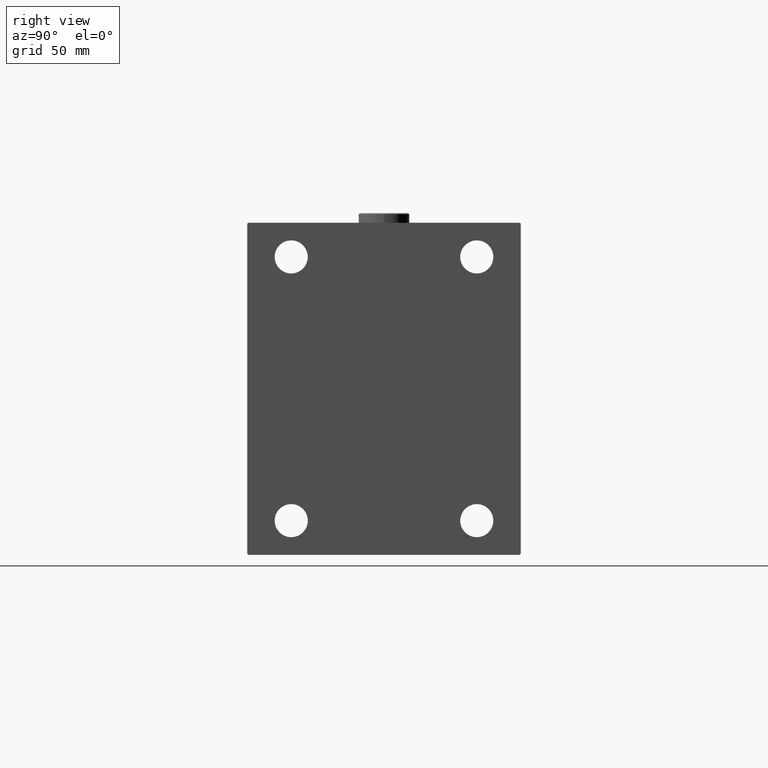
[diagram: clean part render]
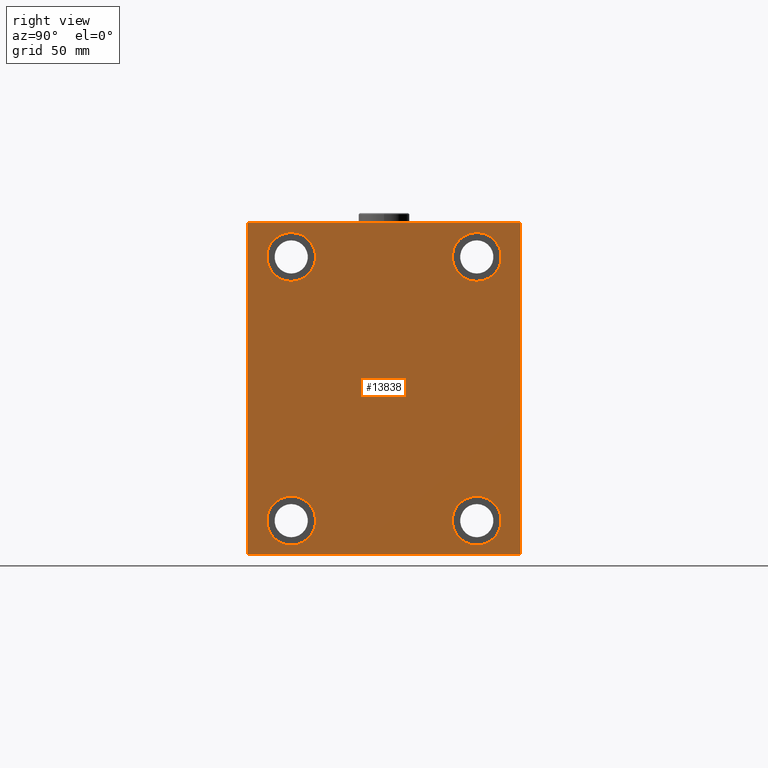
[diagram: same view with one face highlighted and labeled with its STEP entity id]
A machine part, right view. The second image highlights one B-rep face of the part: STEP entity #13838.
In plain terms, the highlighted planar face has unit normal (1, 0, 0).
Its self-contained STEP definition (entity closure, byte-faithful):
#110 = EDGE_CURVE ( 'NONE', #35674, #44049, #6968, .T. ) ;
#324 = DIRECTION ( 'NONE',  ( 0.000000000000000000, 0.000000000000000000, 1.000000000000000000 ) ) ;
#427 = CARTESIAN_POINT ( 'NONE',  ( 225.0000000000000000, -47.49999999999999289, -67.50000000000000000 ) ) ;
#572 = EDGE_CURVE ( 'NONE', #6189, #43401, #38110, .T. ) ;
#621 = ORIENTED_EDGE ( 'NONE', *, *, #41030, .T. ) ;
#709 = CARTESIAN_POINT ( 'NONE',  ( 225.0000000000000000, -47.49999999999999289, -80.00000000000000000 ) ) ;
#1617 = VECTOR ( 'NONE', #41852, 1000.000000000000114 ) ;
#2164 = LINE ( 'NONE', #45491, #15686 ) ;
#2444 = CARTESIAN_POINT ( 'NONE',  ( 225.0000000000000000, 69.50000000000007105, -85.00000000000001421 ) ) ;
#2699 = CARTESIAN_POINT ( 'NONE',  ( 225.0000000000000000, -47.49999999999997868, 67.50000000000000000 ) ) ;
#2767 = AXIS2_PLACEMENT_3D ( 'NONE', #12961, #42923, #10326 ) ;
#2785 = CIRCLE ( 'NONE', #14947, 12.50000000000001066 ) ;
#3800 = LINE ( 'NONE', #47106, #39193 ) ;
#3955 = AXIS2_PLACEMENT_3D ( 'NONE', #2699, #5570, #38862 ) ;
#4758 = CARTESIAN_POINT ( 'NONE',  ( 225.0000000000000000, 47.50000000000000711, 80.00000000000001421 ) ) ;
#4829 = FACE_BOUND ( 'NONE', #42749, .T. ) ;
#4891 = ORIENTED_EDGE ( 'NONE', *, *, #13945, .T. ) ;
#5172 = DIRECTION ( 'NONE',  ( 0.000000000000000000, 0.000000000000000000, 1.000000000000000000 ) ) ;
#5261 = EDGE_CURVE ( 'NONE', #35311, #5429, #23011, .T. ) ;
#5429 = VERTEX_POINT ( 'NONE', #40111 ) ;
#5570 = DIRECTION ( 'NONE',  ( -1.000000000000000000, -0.000000000000000000, -0.000000000000000000 ) ) ;
#5876 = VERTEX_POINT ( 'NONE', #45261 ) ;
#5983 = DIRECTION ( 'NONE',  ( 0.000000000000000000, -8.163404592832031500E-17, 1.000000000000000000 ) ) ;
#6189 = VERTEX_POINT ( 'NONE', #4758 ) ;
#6239 = VERTEX_POINT ( 'NONE', #709 ) ;
#6379 = LINE ( 'NONE', #42788, #1617 ) ;
#6723 = EDGE_LOOP ( 'NONE', ( #27957, #33917, #26354, #40348, #44241, #36488, #38519, #34367 ) ) ;
#6968 = CIRCLE ( 'NONE', #3955, 12.50000000000001066 ) ;
#7323 = VECTOR ( 'NONE', #37264, 1000.000000000000114 ) ;
#7369 = LINE ( 'NONE', #36622, #7973 ) ;
#7692 = FACE_BOUND ( 'NONE', #43747, .T. ) ;
#7716 = DIRECTION ( 'NONE',  ( -1.000000000000000000, -0.000000000000000000, -0.000000000000000000 ) ) ;
#7759 = ORIENTED_EDGE ( 'NONE', *, *, #35224, .T. ) ;
#7973 = VECTOR ( 'NONE', #44242, 1000.000000000000000 ) ;
#8514 = CIRCLE ( 'NONE', #9256, 12.49999999999999645 ) ;
#8847 = CARTESIAN_POINT ( 'NONE',  ( 225.0000000000000000, 70.00000000000002842, -85.00000000000001421 ) ) ;
#9256 = AXIS2_PLACEMENT_3D ( 'NONE', #40384, #22305, #29672 ) ;
#9310 = LINE ( 'NONE', #8847, #35614 ) ;
#9365 = VERTEX_POINT ( 'NONE', #27103 ) ;
#10244 = CARTESIAN_POINT ( 'NONE',  ( 225.0000000000000000, -47.49999999999997868, 55.00000000000000000 ) ) ;
#10326 = DIRECTION ( 'NONE',  ( 0.000000000000000000, 0.000000000000000000, 1.000000000000000000 ) ) ;
#10807 = EDGE_LOOP ( 'NONE', ( #4891, #33860 ) ) ;
#11138 = AXIS2_PLACEMENT_3D ( 'NONE', #427, #15188, #36602 ) ;
#11405 = DIRECTION ( 'NONE',  ( 0.000000000000000000, -1.000000000000000000, -9.912705577010325549E-17 ) ) ;
#12206 = PLANE ( 'NONE',  #42971 ) ;
#12383 = CARTESIAN_POINT ( 'NONE',  ( 225.0000000000000000, 47.50000000000000711, -55.00000000000000711 ) ) ;
#12961 = CARTESIAN_POINT ( 'NONE',  ( 225.0000000000000000, 47.50000000000000711, -67.50000000000000000 ) ) ;
#13031 = EDGE_CURVE ( 'NONE', #27758, #35311, #44293, .T. ) ;
#13838 = ADVANCED_FACE ( 'NONE', ( #7692, #4829, #34798, #26709, #30521 ), #12206, .T. ) ;
#13945 = EDGE_CURVE ( 'NONE', #43401, #6189, #2785, .T. ) ;
#14241 = VERTEX_POINT ( 'NONE', #12383 ) ;
#14316 = CARTESIAN_POINT ( 'NONE',  ( 225.0000000000000000, 47.50000000000000711, 67.50000000000000000 ) ) ;
#14904 = CIRCLE ( 'NONE', #2767, 12.49999999999999645 ) ;
#14947 = AXIS2_PLACEMENT_3D ( 'NONE', #14316, #39307, #21228 ) ;
#15027 = DIRECTION ( 'NONE',  ( 0.000000000000000000, 0.000000000000000000, -1.000000000000000000 ) ) ;
#15131 = VERTEX_POINT ( 'NONE', #32588 ) ;
#15134 = EDGE_CURVE ( 'NONE', #35361, #9365, #3800, .T. ) ;
#15188 = DIRECTION ( 'NONE',  ( -1.000000000000000000, -0.000000000000000000, -0.000000000000000000 ) ) ;
#15378 = LINE ( 'NONE', #41074, #7323 ) ;
#15527 = ORIENTED_EDGE ( 'NONE', *, *, #19815, .T. ) ;
#15686 = VECTOR ( 'NONE', #20263, 1000.000000000000000 ) ;
#16711 = EDGE_CURVE ( 'NONE', #5429, #19383, #2164, .T. ) ;
#17603 = AXIS2_PLACEMENT_3D ( 'NONE', #27059, #37525, #5172 ) ;
#18782 = CIRCLE ( 'NONE', #29442, 12.50000000000001066 ) ;
#18991 = CARTESIAN_POINT ( 'NONE',  ( 225.0000000000000000, -69.99999999999998579, 84.49999999999998579 ) ) ;
#19112 = CARTESIAN_POINT ( 'NONE',  ( 225.0000000000000000, -47.49999999999997868, 80.00000000000001421 ) ) ;
#19218 = EDGE_CURVE ( 'NONE', #5876, #6239, #21435, .T. ) ;
#19383 = VERTEX_POINT ( 'NONE', #2444 ) ;
#19438 = CARTESIAN_POINT ( 'NONE',  ( 225.0000000000000000, -77.25000000000099476, -77.24999999999884892 ) ) ;
#19815 = EDGE_CURVE ( 'NONE', #29202, #14241, #8514, .T. ) ;
#20263 = DIRECTION ( 'NONE',  ( 0.000000000000000000, 1.000000000000000000, 9.912705577010325549E-17 ) ) ;
#21074 = CARTESIAN_POINT ( 'NONE',  ( 225.0000000000000000, -47.49999999999997868, 67.50000000000000000 ) ) ;
#21228 = DIRECTION ( 'NONE',  ( 0.000000000000000000, 0.000000000000000000, 1.000000000000000000 ) ) ;
#21435 = CIRCLE ( 'NONE', #35864, 12.49999999999999645 ) ;
#21541 = EDGE_CURVE ( 'NONE', #19383, #32227, #6379, .T. ) ;
#22305 = DIRECTION ( 'NONE',  ( -1.000000000000000000, -0.000000000000000000, -0.000000000000000000 ) ) ;
#23011 = LINE ( 'NONE', #19438, #38275 ) ;
#24045 = CIRCLE ( 'NONE', #11138, 12.49999999999999645 ) ;
#25681 = CARTESIAN_POINT ( 'NONE',  ( 225.0000000000000000, 69.50000000000004263, 85.00000000000000000 ) ) ;
#26354 = ORIENTED_EDGE ( 'NONE', *, *, #13031, .T. ) ;
#26709 = FACE_BOUND ( 'NONE', #27411, .T. ) ;
#26948 = DIRECTION ( 'NONE',  ( 0.000000000000000000, 0.000000000000000000, -1.000000000000000000 ) ) ;
#27059 = CARTESIAN_POINT ( 'NONE',  ( 225.0000000000000000, 47.50000000000000711, 67.50000000000000000 ) ) ;
#27103 = CARTESIAN_POINT ( 'NONE',  ( 225.0000000000000000, -69.49999999999997158, 84.99999999999998579 ) ) ;
#27411 = EDGE_LOOP ( 'NONE', ( #7759, #34397 ) ) ;
#27726 = DIRECTION ( 'NONE',  ( -1.000000000000000000, -0.000000000000000000, -0.000000000000000000 ) ) ;
#27758 = VERTEX_POINT ( 'NONE', #18991 ) ;
#27957 = ORIENTED_EDGE ( 'NONE', *, *, #15134, .T. ) ;
#29202 = VERTEX_POINT ( 'NONE', #33178 ) ;
#29442 = AXIS2_PLACEMENT_3D ( 'NONE', #21074, #7716, #324 ) ;
#29474 = CARTESIAN_POINT ( 'NONE',  ( 225.0000000000000000, -69.99999999999998579, -84.50000000000004263 ) ) ;
#29672 = DIRECTION ( 'NONE',  ( 0.000000000000000000, 0.000000000000000000, 1.000000000000000000 ) ) ;
#30521 = FACE_OUTER_BOUND ( 'NONE', #6723, .T. ) ;
#31256 = EDGE_CURVE ( 'NONE', #9365, #27758, #7369, .T. ) ;
#32227 = VERTEX_POINT ( 'NONE', #45183 ) ;
#32588 = CARTESIAN_POINT ( 'NONE',  ( 225.0000000000000000, 70.00000000000001421, 84.50000000000001421 ) ) ;
#32589 = ORIENTED_EDGE ( 'NONE', *, *, #110, .T. ) ;
#33178 = CARTESIAN_POINT ( 'NONE',  ( 225.0000000000000000, 47.50000000000000711, -80.00000000000000000 ) ) ;
#33459 = ORIENTED_EDGE ( 'NONE', *, *, #38726, .T. ) ;
#33860 = ORIENTED_EDGE ( 'NONE', *, *, #572, .T. ) ;
#33917 = ORIENTED_EDGE ( 'NONE', *, *, #31256, .T. ) ;
#34367 = ORIENTED_EDGE ( 'NONE', *, *, #34408, .T. ) ;
#34397 = ORIENTED_EDGE ( 'NONE', *, *, #19218, .T. ) ;
#34408 = EDGE_CURVE ( 'NONE', #15131, #35361, #15378, .T. ) ;
#34416 = CARTESIAN_POINT ( 'NONE',  ( 225.0000000000000000, 47.50000000000000711, 55.00000000000000000 ) ) ;
#34798 = FACE_BOUND ( 'NONE', #10807, .T. ) ;
#34876 = DIRECTION ( 'NONE',  ( 0.000000000000000000, 0.000000000000000000, 1.000000000000000000 ) ) ;
#35102 = CARTESIAN_POINT ( 'NONE',  ( 225.0000000000000000, -47.49999999999999289, -67.50000000000000000 ) ) ;
#35224 = EDGE_CURVE ( 'NONE', #6239, #5876, #24045, .T. ) ;
#35311 = VERTEX_POINT ( 'NONE', #29474 ) ;
#35361 = VERTEX_POINT ( 'NONE', #25681 ) ;
#35465 = VECTOR ( 'NONE', #15027, 1000.000000000000000 ) ;
#35614 = VECTOR ( 'NONE', #5983, 1000.000000000000000 ) ;
#35674 = VERTEX_POINT ( 'NONE', #19112 ) ;
#35864 = AXIS2_PLACEMENT_3D ( 'NONE', #35102, #27726, #34876 ) ;
#36488 = ORIENTED_EDGE ( 'NONE', *, *, #21541, .T. ) ;
#36602 = DIRECTION ( 'NONE',  ( 0.000000000000000000, 0.000000000000000000, 1.000000000000000000 ) ) ;
#36622 = CARTESIAN_POINT ( 'NONE',  ( 225.0000000000000000, -77.24999999999803890, 77.25000000000234479 ) ) ;
#37264 = DIRECTION ( 'NONE',  ( -0.000000000000000000, -0.7071067811865376918, 0.7071067811865573427 ) ) ;
#37525 = DIRECTION ( 'NONE',  ( -1.000000000000000000, -0.000000000000000000, -0.000000000000000000 ) ) ;
#37761 = DIRECTION ( 'NONE',  ( -0.000000000000000000, 0.7071067811865376918, -0.7071067811865573427 ) ) ;
#38110 = CIRCLE ( 'NONE', #17603, 12.50000000000001066 ) ;
#38275 = VECTOR ( 'NONE', #37761, 1000.000000000000114 ) ;
#38519 = ORIENTED_EDGE ( 'NONE', *, *, #44770, .T. ) ;
#38726 = EDGE_CURVE ( 'NONE', #14241, #29202, #14904, .T. ) ;
#38862 = DIRECTION ( 'NONE',  ( 0.000000000000000000, 0.000000000000000000, 1.000000000000000000 ) ) ;
#39193 = VECTOR ( 'NONE', #11405, 1000.000000000000000 ) ;
#39307 = DIRECTION ( 'NONE',  ( -1.000000000000000000, -0.000000000000000000, -0.000000000000000000 ) ) ;
#40111 = CARTESIAN_POINT ( 'NONE',  ( 225.0000000000000000, -69.50000000000001421, -85.00000000000002842 ) ) ;
#40348 = ORIENTED_EDGE ( 'NONE', *, *, #5261, .T. ) ;
#40384 = CARTESIAN_POINT ( 'NONE',  ( 225.0000000000000000, 47.50000000000000711, -67.50000000000000000 ) ) ;
#41030 = EDGE_CURVE ( 'NONE', #44049, #35674, #18782, .T. ) ;
#41074 = CARTESIAN_POINT ( 'NONE',  ( 225.0000000000000000, 77.25000000000099476, 77.24999999999884892 ) ) ;
#41852 = DIRECTION ( 'NONE',  ( -0.000000000000000000, 0.7071067811865573427, 0.7071067811865376918 ) ) ;
#42749 = EDGE_LOOP ( 'NONE', ( #621, #32589 ) ) ;
#42788 = CARTESIAN_POINT ( 'NONE',  ( 225.0000000000000000, 77.24999999999907629, -77.25000000000123634 ) ) ;
#42923 = DIRECTION ( 'NONE',  ( -1.000000000000000000, -0.000000000000000000, -0.000000000000000000 ) ) ;
#42971 = AXIS2_PLACEMENT_3D ( 'NONE', #45743, #45282, #26948 ) ;
#43401 = VERTEX_POINT ( 'NONE', #34416 ) ;
#43747 = EDGE_LOOP ( 'NONE', ( #15527, #33459 ) ) ;
#44049 = VERTEX_POINT ( 'NONE', #10244 ) ;
#44241 = ORIENTED_EDGE ( 'NONE', *, *, #16711, .T. ) ;
#44242 = DIRECTION ( 'NONE',  ( 0.000000000000000000, -0.7071067811865672237, -0.7071067811865279218 ) ) ;
#44293 = LINE ( 'NONE', #44757, #35465 ) ;
#44757 = CARTESIAN_POINT ( 'NONE',  ( 225.0000000000000000, -69.99999999999998579, 84.99999999999998579 ) ) ;
#44770 = EDGE_CURVE ( 'NONE', #32227, #15131, #9310, .T. ) ;
#45183 = CARTESIAN_POINT ( 'NONE',  ( 225.0000000000000000, 70.00000000000002842, -84.50000000000007105 ) ) ;
#45261 = CARTESIAN_POINT ( 'NONE',  ( 225.0000000000000000, -47.49999999999999289, -55.00000000000000711 ) ) ;
#45282 = DIRECTION ( 'NONE',  ( 1.000000000000000000, 0.000000000000000000, 0.000000000000000000 ) ) ;
#45491 = CARTESIAN_POINT ( 'NONE',  ( 225.0000000000000000, -69.99999999999998579, -85.00000000000002842 ) ) ;
#45743 = CARTESIAN_POINT ( 'NONE',  ( 225.0000000000000000, 0.000000000000000000, 0.000000000000000000 ) ) ;
#47106 = CARTESIAN_POINT ( 'NONE',  ( 225.0000000000000000, 70.00000000000001421, 85.00000000000000000 ) ) ;